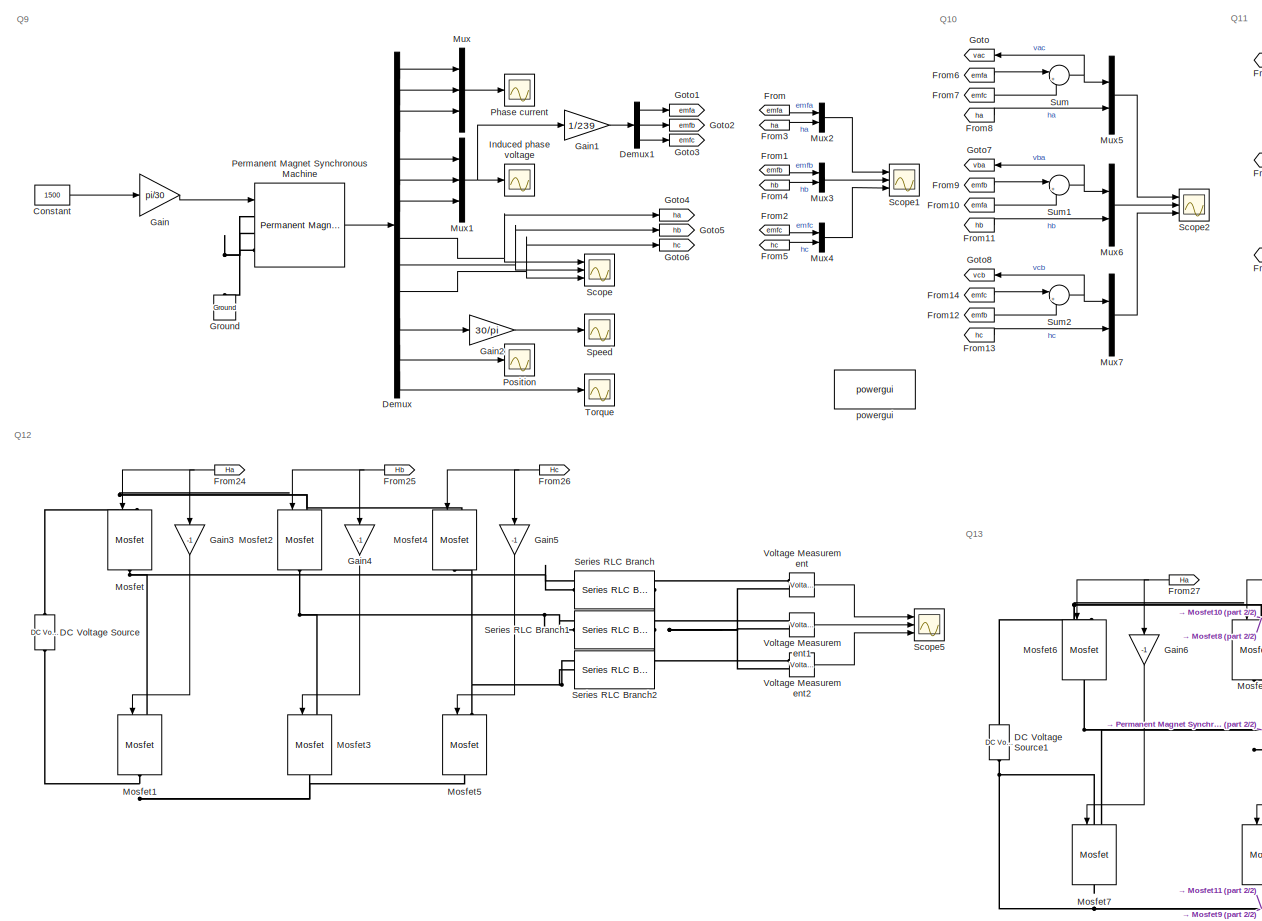
[diagram: root canvas - part 1/2, left side, full height]
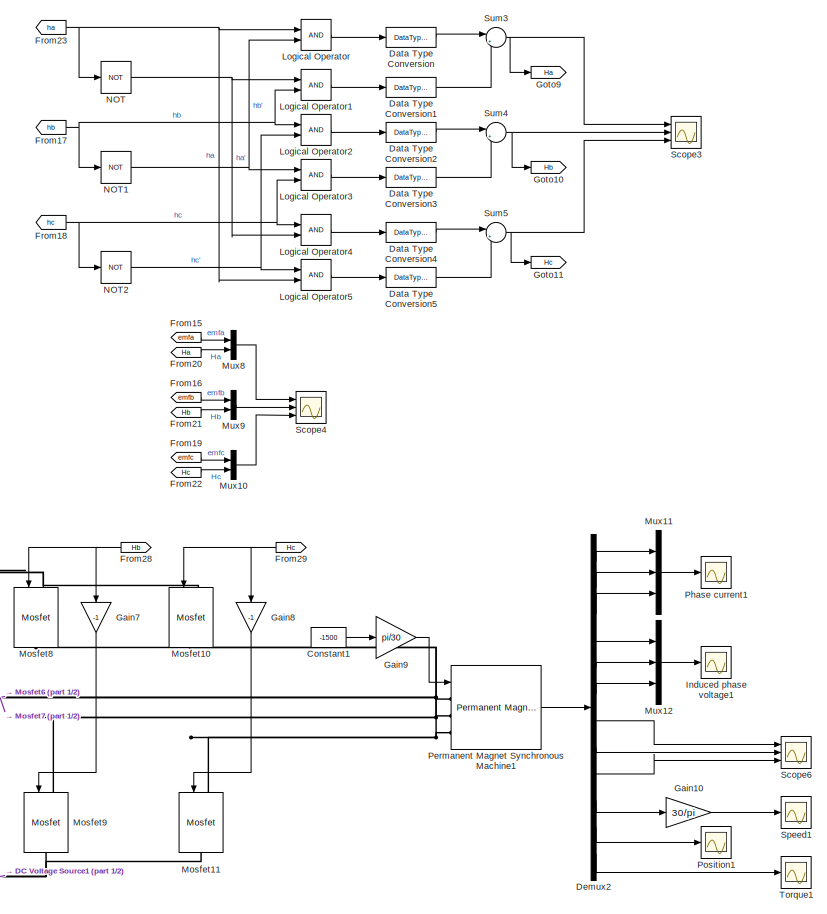
[diagram: root canvas - part 2/2, right side, full height]
MODEL slx_e524c21c30ba
KIND model
CONFIG AbsTol = auto
CONFIG EnableMultiTasking = off
CONFIG FixedStep = auto
CONFIG MaxStep = auto
CONFIG MinStep = auto
CONFIG RelTol = 1e-3
CONFIG SampleTimeConstraint = Unconstrained
CONFIG SolverName = VariableStepAuto
CONFIG StartTime = 0.0
CONFIG StopTime = 0.1
BLOCK [Constant] Constant
  Value = 1500
BLOCK [Constant] Constant1
  Value = -1500
BLOCK [Reference] DC Voltage Source  REF=powerlib/Electrical
Sources/DC Voltage Source
  NameLocation = right
  Ports = [0, 0, 0, 0, 0, 1, 1]
  SourceBlock = powerlib/Electrical\nSources/DC Voltage Source
  SourceProductBaseCode = PS
  SourceType = DC Voltage Source
BLOCK [Reference] DC Voltage Source1  REF=powerlib/Electrical
Sources/DC Voltage Source
  NameLocation = right
  Ports = [0, 0, 0, 0, 0, 1, 1]
  SourceBlock = powerlib/Electrical\nSources/DC Voltage Source
  SourceProductBaseCode = PS
  SourceType = DC Voltage Source
BLOCK [DataTypeConversion] Data Type Conversion
  RndMeth = Floor
  SaturateOnIntegerOverflow = off
BLOCK [DataTypeConversion] Data Type Conversion1
  RndMeth = Floor
  SaturateOnIntegerOverflow = off
BLOCK [DataTypeConversion] Data Type Conversion2
  RndMeth = Floor
  SaturateOnIntegerOverflow = off
BLOCK [DataTypeConversion] Data Type Conversion3
  RndMeth = Floor
  SaturateOnIntegerOverflow = off
BLOCK [DataTypeConversion] Data Type Conversion4
  RndMeth = Floor
  SaturateOnIntegerOverflow = off
BLOCK [DataTypeConversion] Data Type Conversion5
  RndMeth = Floor
  SaturateOnIntegerOverflow = off
BLOCK [Demux] Demux
  Outputs = 12
  Ports = [1, 12]
BLOCK [Demux] Demux1
  Outputs = 3
  Ports = [1, 3]
BLOCK [Demux] Demux2
  Outputs = 12
  Ports = [1, 12]
BLOCK [From] From
  GotoTag = emfa
  TagVisibility = global
BLOCK [From] From1
  GotoTag = emfb
  TagVisibility = global
BLOCK [From] From10
  GotoTag = emfa
  TagVisibility = global
BLOCK [From] From11
  GotoTag = hb
  TagVisibility = global
BLOCK [From] From12
  GotoTag = emfb
  TagVisibility = global
BLOCK [From] From13
  GotoTag = hc
  TagVisibility = global
BLOCK [From] From14
  GotoTag = emfc
  TagVisibility = global
BLOCK [From] From15
  GotoTag = emfa
  TagVisibility = global
BLOCK [From] From16
  GotoTag = emfb
  TagVisibility = global
BLOCK [From] From17
  GotoTag = hb
  TagVisibility = global
BLOCK [From] From18
  GotoTag = hc
  TagVisibility = global
BLOCK [From] From19
  GotoTag = emfc
  TagVisibility = global
BLOCK [From] From2
  GotoTag = emfc
  TagVisibility = global
BLOCK [From] From20
  GotoTag = Ha
  TagVisibility = global
BLOCK [From] From21
  GotoTag = Hb
  TagVisibility = global
BLOCK [From] From22
  GotoTag = Hc
  TagVisibility = global
BLOCK [From] From23
  GotoTag = ha
  TagVisibility = global
BLOCK [From] From24
  GotoTag = Ha
  NameLocation = top
  TagVisibility = global
BLOCK [From] From25
  GotoTag = Hb
  NameLocation = top
  TagVisibility = global
BLOCK [From] From26
  GotoTag = Hc
  NameLocation = top
  TagVisibility = global
BLOCK [From] From27
  GotoTag = Ha
  NameLocation = top
  TagVisibility = global
BLOCK [From] From28
  GotoTag = Hb
  NameLocation = top
  TagVisibility = global
BLOCK [From] From29
  GotoTag = Hc
  NameLocation = top
  TagVisibility = global
BLOCK [From] From3
  GotoTag = ha
  TagVisibility = global
BLOCK [From] From4
  GotoTag = hb
  TagVisibility = global
BLOCK [From] From5
  GotoTag = hc
  TagVisibility = global
BLOCK [From] From6
  GotoTag = emfa
  TagVisibility = global
BLOCK [From] From7
  GotoTag = emfc
  TagVisibility = global
BLOCK [From] From8
  GotoTag = ha
  TagVisibility = global
BLOCK [From] From9
  GotoTag = emfb
  TagVisibility = global
BLOCK [Gain] Gain
  Gain = pi/30
BLOCK [Gain] Gain1
  Gain = 1/239
BLOCK [Gain] Gain10
  Gain = 30/pi
BLOCK [Gain] Gain2
  Gain = 30/pi
BLOCK [Gain] Gain3
  Gain = -1
  NameLocation = left
BLOCK [Gain] Gain4
  Gain = -1
  NameLocation = left
BLOCK [Gain] Gain5
  Gain = -1
  NameLocation = left
BLOCK [Gain] Gain6
  Gain = -1
  NameLocation = left
BLOCK [Gain] Gain7
  Gain = -1
  NameLocation = left
BLOCK [Gain] Gain8
  Gain = -1
  NameLocation = left
BLOCK [Gain] Gain9
  Gain = pi/30
BLOCK [Goto] Goto
  GotoTag = vac
  NameLocation = top
  TagVisibility = global
BLOCK [Goto] Goto1
  GotoTag = emfa
  TagVisibility = global
BLOCK [Goto] Goto10
  GotoTag = Hb
  TagVisibility = global
BLOCK [Goto] Goto11
  GotoTag = Hc
  TagVisibility = global
BLOCK [Goto] Goto2
  GotoTag = emfb
  TagVisibility = global
BLOCK [Goto] Goto3
  GotoTag = emfc
  TagVisibility = global
BLOCK [Goto] Goto4
  GotoTag = ha
  TagVisibility = global
BLOCK [Goto] Goto5
  GotoTag = hb
  TagVisibility = global
BLOCK [Goto] Goto6
  GotoTag = hc
  TagVisibility = global
BLOCK [Goto] Goto7
  GotoTag = vba
  NameLocation = top
  TagVisibility = global
BLOCK [Goto] Goto8
  GotoTag = vcb
  NameLocation = top
  TagVisibility = global
BLOCK [Goto] Goto9
  GotoTag = Ha
  TagVisibility = global
BLOCK [Reference] Ground  REF=powerlib/Elements/Ground
  NameLocation = right
  Ports = [0, 0, 0, 0, 0, 1]
  SourceBlock = powerlib/Elements/Ground
  SourceProductBaseCode = PS
  SourceType = Ground
BLOCK [Scope] Induced phase voltage
  Floating = off
  NumInputPorts = 1
  Ports = [1]
  ScopeSpecificationString = Simulink.scopes.TimeScopeBlockCfg('CurrentConfiguration', extmgr.ConfigurationSet(extmgr.Configuration('Core','General UI',true),extmgr.Configuration('Core','Source UI',true),extmgr.Configuration('Sources','WiredSimulink',true,'DataLoggingVariableName','ScopeData1'),extmgr.Configuration('Visuals','Time Domain',true,'SerializedDisplays',{struct('MinYLimReal','-298.23924','MaxYLimReal','298.23924','...<+1753ch>
BLOCK [Scope] Induced phase voltage1
  Floating = off
  NumInputPorts = 1
  Ports = [1]
  ScopeSpecificationString = Simulink.scopes.TimeScopeBlockCfg('CurrentConfiguration', extmgr.ConfigurationSet(extmgr.Configuration('Core','General UI',true),extmgr.Configuration('Core','Source UI',true),extmgr.Configuration('Sources','WiredSimulink',true,'DataLoggingVariableName','ScopeData7'),extmgr.Configuration('Visuals','Time Domain',true,'SerializedDisplays',{struct('MinYLimReal','-298.23924','MaxYLimReal','298.23924','...<+1756ch>
BLOCK [Logic] Logical Operator
  AllPortsSameDT = off
  OutDataTypeStr = boolean
  Ports = [2, 1]
BLOCK [Logic] Logical Operator1
  AllPortsSameDT = off
  OutDataTypeStr = boolean
  Ports = [2, 1]
BLOCK [Logic] Logical Operator2
  AllPortsSameDT = off
  OutDataTypeStr = boolean
  Ports = [2, 1]
BLOCK [Logic] Logical Operator3
  AllPortsSameDT = off
  OutDataTypeStr = boolean
  Ports = [2, 1]
BLOCK [Logic] Logical Operator4
  AllPortsSameDT = off
  OutDataTypeStr = boolean
  Ports = [2, 1]
BLOCK [Logic] Logical Operator5
  AllPortsSameDT = off
  OutDataTypeStr = boolean
  Ports = [2, 1]
BLOCK [Reference] Mosfet  REF=powerlib/Power
Electronics/Mosfet
  NameLocation = left
  Ports = [1, 0, 0, 0, 0, 1, 1]
  SourceBlock = powerlib/Power\nElectronics/Mosfet
  SourceProductBaseCode = PS
  SourceType = Mosfet
BLOCK [Reference] Mosfet1  REF=powerlib/Power
Electronics/Mosfet
  NameLocation = left
  Ports = [1, 0, 0, 0, 0, 1, 1]
  SourceBlock = powerlib/Power\nElectronics/Mosfet
  SourceProductBaseCode = PS
  SourceType = Mosfet
BLOCK [Reference] Mosfet10  REF=powerlib/Power
Electronics/Mosfet
  NameLocation = left
  Ports = [1, 0, 0, 0, 0, 1, 1]
  SourceBlock = powerlib/Power\nElectronics/Mosfet
  SourceProductBaseCode = PS
  SourceType = Mosfet
BLOCK [Reference] Mosfet11  REF=powerlib/Power
Electronics/Mosfet
  NameLocation = left
  Ports = [1, 0, 0, 0, 0, 1, 1]
  SourceBlock = powerlib/Power\nElectronics/Mosfet
  SourceProductBaseCode = PS
  SourceType = Mosfet
BLOCK [Reference] Mosfet2  REF=powerlib/Power
Electronics/Mosfet
  NameLocation = left
  Ports = [1, 0, 0, 0, 0, 1, 1]
  SourceBlock = powerlib/Power\nElectronics/Mosfet
  SourceProductBaseCode = PS
  SourceType = Mosfet
BLOCK [Reference] Mosfet3  REF=powerlib/Power
Electronics/Mosfet
  NameLocation = left
  Ports = [1, 0, 0, 0, 0, 1, 1]
  SourceBlock = powerlib/Power\nElectronics/Mosfet
  SourceProductBaseCode = PS
  SourceType = Mosfet
BLOCK [Reference] Mosfet4  REF=powerlib/Power
Electronics/Mosfet
  NameLocation = left
  Ports = [1, 0, 0, 0, 0, 1, 1]
  SourceBlock = powerlib/Power\nElectronics/Mosfet
  SourceProductBaseCode = PS
  SourceType = Mosfet
BLOCK [Reference] Mosfet5  REF=powerlib/Power
Electronics/Mosfet
  NameLocation = left
  Ports = [1, 0, 0, 0, 0, 1, 1]
  SourceBlock = powerlib/Power\nElectronics/Mosfet
  SourceProductBaseCode = PS
  SourceType = Mosfet
BLOCK [Reference] Mosfet6  REF=powerlib/Power
Electronics/Mosfet
  NameLocation = left
  Ports = [1, 0, 0, 0, 0, 1, 1]
  SourceBlock = powerlib/Power\nElectronics/Mosfet
  SourceProductBaseCode = PS
  SourceType = Mosfet
BLOCK [Reference] Mosfet7  REF=powerlib/Power
Electronics/Mosfet
  NameLocation = left
  Ports = [1, 0, 0, 0, 0, 1, 1]
  SourceBlock = powerlib/Power\nElectronics/Mosfet
  SourceProductBaseCode = PS
  SourceType = Mosfet
BLOCK [Reference] Mosfet8  REF=powerlib/Power
Electronics/Mosfet
  NameLocation = left
  Ports = [1, 0, 0, 0, 0, 1, 1]
  SourceBlock = powerlib/Power\nElectronics/Mosfet
  SourceProductBaseCode = PS
  SourceType = Mosfet
BLOCK [Reference] Mosfet9  REF=powerlib/Power
Electronics/Mosfet
  NameLocation = left
  Ports = [1, 0, 0, 0, 0, 1, 1]
  SourceBlock = powerlib/Power\nElectronics/Mosfet
  SourceProductBaseCode = PS
  SourceType = Mosfet
BLOCK [Mux] Mux
  DisplayOption = bar
  Inputs = 3
  Ports = [3, 1]
BLOCK [Mux] Mux1
  DisplayOption = bar
  Inputs = 3
  Ports = [3, 1]
BLOCK [Mux] Mux10
  DisplayOption = bar
  Inputs = 2
  Ports = [2, 1]
BLOCK [Mux] Mux11
  DisplayOption = bar
  Inputs = 3
  Ports = [3, 1]
BLOCK [Mux] Mux12
  DisplayOption = bar
  Inputs = 3
  Ports = [3, 1]
BLOCK [Mux] Mux2
  DisplayOption = bar
  Inputs = 2
  Ports = [2, 1]
BLOCK [Mux] Mux3
  DisplayOption = bar
  Inputs = 2
  Ports = [2, 1]
BLOCK [Mux] Mux4
  DisplayOption = bar
  Inputs = 2
  Ports = [2, 1]
BLOCK [Mux] Mux5
  DisplayOption = bar
  Inputs = 2
  Ports = [2, 1]
BLOCK [Mux] Mux6
  DisplayOption = bar
  Inputs = 2
  Ports = [2, 1]
BLOCK [Mux] Mux7
  DisplayOption = bar
  Inputs = 2
  Ports = [2, 1]
BLOCK [Mux] Mux8
  DisplayOption = bar
  Inputs = 2
  Ports = [2, 1]
BLOCK [Mux] Mux9
  DisplayOption = bar
  Inputs = 2
  Ports = [2, 1]
BLOCK [Logic] NOT
  AllPortsSameDT = off
  IconShape = distinctive
  Operator = NOT
  OutDataTypeStr = boolean
  Ports = [1, 1]
BLOCK [Logic] NOT1
  AllPortsSameDT = off
  IconShape = distinctive
  Operator = NOT
  OutDataTypeStr = boolean
  Ports = [1, 1]
BLOCK [Logic] NOT2
  AllPortsSameDT = off
  IconShape = distinctive
  Operator = NOT
  OutDataTypeStr = boolean
  Ports = [1, 1]
BLOCK [Reference] Permanent Magnet Synchronous Machine  REF=powerlib/Machines/Permanent Magnet
Synchronous Machine
  Ports = [1, 1, 0, 0, 0, 3]
  SourceBlock = powerlib/Machines/Permanent Magnet\nSynchronous Machine
  SourceProductBaseCode = PS
  SourceType = Permanent Magnet Synchronous Machine
BLOCK [Reference] Permanent Magnet Synchronous Machine1  REF=powerlib/Machines/Permanent Magnet
Synchronous Machine
  Ports = [1, 1, 0, 0, 0, 3]
  SourceBlock = powerlib/Machines/Permanent Magnet\nSynchronous Machine
  SourceProductBaseCode = PS
  SourceType = Permanent Magnet Synchronous Machine
BLOCK [Scope] Phase current
  Floating = off
  NumInputPorts = 1
  Ports = [1]
  ScopeSpecificationString = Simulink.scopes.TimeScopeBlockCfg('CurrentConfiguration', extmgr.ConfigurationSet(extmgr.Configuration('Core','General UI',true),extmgr.Configuration('Core','Source UI',true),extmgr.Configuration('Sources','WiredSimulink',true),extmgr.Configuration('Visuals','Time Domain',true,'SerializedDisplays',{struct('MinYLimReal','-42.22072','MaxYLimReal','42.1209','YLabelReal','','MinYLimMag','0.00000','Max...<+1381ch>
BLOCK [Scope] Phase current1
  Floating = off
  NumInputPorts = 1
  Ports = [1]
  ScopeSpecificationString = Simulink.scopes.TimeScopeBlockCfg('CurrentConfiguration', extmgr.ConfigurationSet(extmgr.Configuration('Core','General UI',true),extmgr.Configuration('Core','Source UI',true),extmgr.Configuration('Sources','WiredSimulink',true,'DataLoggingVariableName','ScopeData8'),extmgr.Configuration('Visuals','Time Domain',true,'SerializedDisplays',{struct('MinYLimReal','-42.22029','MaxYLimReal','42.12021','YL...<+1422ch>
BLOCK [Scope] Position
  Floating = off
  NumInputPorts = 1
  Ports = [1]
  ScopeSpecificationString = Simulink.scopes.TimeScopeBlockCfg('CurrentConfiguration', extmgr.ConfigurationSet(extmgr.Configuration('Core','General UI',true),extmgr.Configuration('Core','Source UI',true),extmgr.Configuration('Sources','WiredSimulink',true,'DataLoggingVariableName','ScopeData4'),extmgr.Configuration('Visuals','Time Domain',true,'SerializedDisplays',{struct('MinYLimReal','-1.9635','MaxYLimReal','17.67146','YLab...<+1399ch>
BLOCK [Scope] Position1
  Floating = off
  NumInputPorts = 1
  Ports = [1]
  ScopeSpecificationString = Simulink.scopes.TimeScopeBlockCfg('CurrentConfiguration', extmgr.ConfigurationSet(extmgr.Configuration('Core','General UI',true),extmgr.Configuration('Core','Source UI',true),extmgr.Configuration('Sources','WiredSimulink',true,'DataLoggingVariableName','ScopeData3'),extmgr.Configuration('Visuals','Time Domain',true,'SerializedDisplays',{struct('MinYLimReal','-1.96281','MaxYLimReal','17.6653','YLab...<+1398ch>
BLOCK [Scope] Scope
  Floating = off
  NumInputPorts = 3
  Ports = [3]
  ScopeSpecificationString = Simulink.scopes.TimeScopeBlockCfg('CurrentConfiguration', extmgr.ConfigurationSet(extmgr.Configuration('Core','General UI',true),extmgr.Configuration('Core','Source UI',true),extmgr.Configuration('Sources','WiredSimulink',true,'DataLoggingVariableName','ScopeData2'),extmgr.Configuration('Visuals','Time Domain',true,'SerializedDisplays',{struct('MinYLimReal','-0.125','MaxYLimReal','1.125','YLabelRe...<+2657ch>
BLOCK [Scope] Scope1
  Floating = off
  NumInputPorts = 3
  Ports = [3]
  ScopeSpecificationString = Simulink.scopes.TimeScopeBlockCfg('CurrentConfiguration', extmgr.ConfigurationSet(extmgr.Configuration('Core','General UI',true),extmgr.Configuration('Core','Source UI',true),extmgr.Configuration('Sources','WiredSimulink',true,'DataLoggingVariableName','ScopeData6'),extmgr.Configuration('Visuals','Time Domain',true,'SerializedDisplays',{struct('MinYLimReal','-1.24808','MaxYLimReal','1.24979','YLab...<+2678ch>
BLOCK [Scope] Scope2
  Floating = off
  NumInputPorts = 3
  Ports = [3]
  ScopeSpecificationString = Simulink.scopes.TimeScopeBlockCfg('CurrentConfiguration', extmgr.ConfigurationSet(extmgr.Configuration('Core','General UI',true),extmgr.Configuration('Core','Source UI',true),extmgr.Configuration('Sources','WiredSimulink',true,'DataLoggingVariableName','ScopeData1'),extmgr.Configuration('Visuals','Time Domain',true,'SerializedDisplays',{struct('MinYLimReal','-2.49573','MaxYLimReal','2.49573','YLab...<+2675ch>
BLOCK [Scope] Scope3
  Floating = off
  NumInputPorts = 3
  Ports = [3]
  ScopeSpecificationString = Simulink.scopes.TimeScopeBlockCfg('CurrentConfiguration', extmgr.ConfigurationSet(extmgr.Configuration('Core','General UI',true),extmgr.Configuration('Core','Source UI',true),extmgr.Configuration('Sources','WiredSimulink',true,'DataLoggingVariableName','ScopeData1'),extmgr.Configuration('Visuals','Time Domain',true,'SerializedDisplays',{struct('MinYLimReal','-1.25','MaxYLimReal','1.25','YLabelReal...<+2648ch>
BLOCK [Scope] Scope4
  Floating = off
  NumInputPorts = 3
  Ports = [3]
  ScopeSpecificationString = Simulink.scopes.TimeScopeBlockCfg('CurrentConfiguration', extmgr.ConfigurationSet(extmgr.Configuration('Core','General UI',true),extmgr.Configuration('Core','Source UI',true),extmgr.Configuration('Sources','WiredSimulink',true,'DataLoggingVariableName','ScopeData2'),extmgr.Configuration('Visuals','Time Domain',true,'SerializedDisplays',{struct('MinYLimReal','-1.25','MaxYLimReal','1.25','YLabelReal...<+2654ch>
BLOCK [Scope] Scope5
  Floating = off
  NumInputPorts = 3
  Ports = [3]
  ScopeSpecificationString = Simulink.scopes.TimeScopeBlockCfg('CurrentConfiguration', extmgr.ConfigurationSet(extmgr.Configuration('Core','General UI',true),extmgr.Configuration('Core','Source UI',true),extmgr.Configuration('Sources','WiredSimulink',true,'DataLoggingVariableName','ScopeData1'),extmgr.Configuration('Visuals','Time Domain',true,'SerializedDisplays',{struct('MinYLimReal','-0.03123','MaxYLimReal','0.03123','YLab...<+2713ch>
BLOCK [Scope] Scope6
  Floating = off
  NumInputPorts = 3
  Ports = [3]
  ScopeSpecificationString = Simulink.scopes.TimeScopeBlockCfg('CurrentConfiguration', extmgr.ConfigurationSet(extmgr.Configuration('Core','General UI',true),extmgr.Configuration('Core','Source UI',true),extmgr.Configuration('Sources','WiredSimulink',true,'DataLoggingVariableName','ScopeData4'),extmgr.Configuration('Visuals','Time Domain',true,'SerializedDisplays',{struct('MinYLimReal','-0.125','MaxYLimReal','1.125','YLabelRe...<+2660ch>
BLOCK [Reference] Series RLC Branch  REF=powerlib/Elements/Series RLC Branch
  Ports = [0, 0, 0, 0, 0, 1, 1]
  SourceBlock = powerlib/Elements/Series RLC Branch
  SourceProductBaseCode = PS
  SourceType = Series RLC Branch
BLOCK [Reference] Series RLC Branch1  REF=powerlib/Elements/Series RLC Branch
  Ports = [0, 0, 0, 0, 0, 1, 1]
  SourceBlock = powerlib/Elements/Series RLC Branch
  SourceProductBaseCode = PS
  SourceType = Series RLC Branch
BLOCK [Reference] Series RLC Branch2  REF=powerlib/Elements/Series RLC Branch
  Ports = [0, 0, 0, 0, 0, 1, 1]
  SourceBlock = powerlib/Elements/Series RLC Branch
  SourceProductBaseCode = PS
  SourceType = Series RLC Branch
BLOCK [Scope] Speed
  Floating = off
  NumInputPorts = 1
  Ports = [1]
  ScopeSpecificationString = Simulink.scopes.TimeScopeBlockCfg('CurrentConfiguration', extmgr.ConfigurationSet(extmgr.Configuration('Core','General UI',true),extmgr.Configuration('Core','Source UI',true),extmgr.Configuration('Sources','WiredSimulink',true,'DataLoggingVariableName','ScopeData3'),extmgr.Configuration('Visuals','Time Domain',true,'SerializedDisplays',{struct('MinYLimReal','500.00000','MaxYLimReal','2500.00000','...<+1447ch>
BLOCK [Scope] Speed1
  Floating = off
  NumInputPorts = 1
  Ports = [1]
  ScopeSpecificationString = Simulink.scopes.TimeScopeBlockCfg('CurrentConfiguration', extmgr.ConfigurationSet(extmgr.Configuration('Core','General UI',true),extmgr.Configuration('Core','Source UI',true),extmgr.Configuration('Sources','WiredSimulink',true,'DataLoggingVariableName','ScopeData5'),extmgr.Configuration('Visuals','Time Domain',true,'SerializedDisplays',{struct('MinYLimReal','500.00000','MaxYLimReal','2500.00000','...<+1447ch>
BLOCK [Sum] Sum
  Inputs = |+-
  Ports = [2, 1]
BLOCK [Sum] Sum1
  Inputs = |+-
  Ports = [2, 1]
BLOCK [Sum] Sum2
  Inputs = |+-
  Ports = [2, 1]
BLOCK [Sum] Sum3
  Inputs = |+-
  Ports = [2, 1]
BLOCK [Sum] Sum4
  Inputs = |+-
  Ports = [2, 1]
BLOCK [Sum] Sum5
  Inputs = |+-
  Ports = [2, 1]
BLOCK [Scope] Torque
  Floating = off
  NumInputPorts = 1
  Ports = [1]
  ScopeSpecificationString = Simulink.scopes.TimeScopeBlockCfg('CurrentConfiguration', extmgr.ConfigurationSet(extmgr.Configuration('Core','General UI',true),extmgr.Configuration('Core','Source UI',true),extmgr.Configuration('Sources','WiredSimulink',true,'DataLoggingVariableName','ScopeData5'),extmgr.Configuration('Visuals','Time Domain',true,'SerializedDisplays',{struct('MinYLimReal','-105.57315','MaxYLimReal','11.73035','Y...<+1409ch>
BLOCK [Scope] Torque1
  Floating = off
  NumInputPorts = 1
  Ports = [1]
  ScopeSpecificationString = Simulink.scopes.TimeScopeBlockCfg('CurrentConfiguration', extmgr.ConfigurationSet(extmgr.Configuration('Core','General UI',true),extmgr.Configuration('Core','Source UI',true),extmgr.Configuration('Sources','WiredSimulink',true,'DataLoggingVariableName','ScopeData6'),extmgr.Configuration('Visuals','Time Domain',true,'SerializedDisplays',{struct('MinYLimReal','-105.57221','MaxYLimReal','11.73025','Y...<+1410ch>
BLOCK [Reference] Voltage Measurement  REF=powerlib/Measurements/Voltage Measurement
  Ports = [0, 1, 0, 0, 0, 2]
  SourceBlock = powerlib/Measurements/Voltage Measurement
  SourceProductBaseCode = PS
  SourceType = Voltage Measurement
  UserDataPersistent = on
BLOCK [Reference] Voltage Measurement1  REF=powerlib/Measurements/Voltage Measurement
  Ports = [0, 1, 0, 0, 0, 2]
  SourceBlock = powerlib/Measurements/Voltage Measurement
  SourceProductBaseCode = PS
  SourceType = Voltage Measurement
  UserDataPersistent = on
BLOCK [Reference] Voltage Measurement2  REF=powerlib/Measurements/Voltage Measurement
  Ports = [0, 1, 0, 0, 0, 2]
  SourceBlock = powerlib/Measurements/Voltage Measurement
  SourceProductBaseCode = PS
  SourceType = Voltage Measurement
  UserDataPersistent = on
BLOCK [Reference] powergui  REF=powerlib/powergui
  Ports = []
  Priority = 1
  SourceBlock = powerlib/powergui
  SourceProductBaseCode = PS
  SourceType = PSB option menu block
ANNOTATION (root): Q10
ANNOTATION (root): Q11
ANNOTATION (root): Q12
ANNOTATION (root): Q13
ANNOTATION (root): Q9
LINE Constant1:1 -> Gain9:1
LINE Constant:1 -> Gain:1
LINE Data Type Conversion1:1 -> Sum3:2
LINE Data Type Conversion2:1 -> Sum4:1
LINE Data Type Conversion3:1 -> Sum4:2
LINE Data Type Conversion4:1 -> Sum5:1
LINE Data Type Conversion5:1 -> Sum5:2
LINE Data Type Conversion:1 -> Sum3:1
LINE Demux1:1 -> Goto1:1
LINE Demux1:2 -> Goto2:1
LINE Demux1:3 -> Goto3:1
LINE Demux2:1 -> Mux11:1
LINE Demux2:10 -> Gain10:1
LINE Demux2:11 -> Position1:1
LINE Demux2:12 -> Torque1:1
LINE Demux2:2 -> Mux11:2
LINE Demux2:3 -> Mux11:3
LINE Demux2:4 -> Mux12:1
LINE Demux2:5 -> Mux12:2
LINE Demux2:6 -> Mux12:3
LINE Demux2:7 -> Scope6:1
LINE Demux2:8 -> Scope6:2
LINE Demux2:9 -> Scope6:3
LINE Demux:1 -> Mux:1
LINE Demux:10 -> Gain2:1
LINE Demux:11 -> Position:1
LINE Demux:12 -> Torque:1
LINE Demux:2 -> Mux:2
LINE Demux:3 -> Mux:3
LINE Demux:4 -> Mux1:1
LINE Demux:5 -> Mux1:2
LINE Demux:6 -> Mux1:3
NET Demux:7 -> Goto4:1, Scope:1
NET Demux:8 -> Goto5:1, Scope:2
NET Demux:9 -> Goto6:1, Scope:3
LINE From10:1 -> Sum1:2
LINE From11:1 -> Mux6:2
LINE From12:1 -> Sum2:2
LINE From13:1 -> Mux7:2
LINE From14:1 -> Sum2:1
LINE From15:1 -> Mux8:1
LINE From16:1 -> Mux9:1
NET From17:1 -> Logical Operator1:2, Logical Operator2:1, NOT1:1
NET From18:1 -> Logical Operator3:2, Logical Operator4:1, NOT2:1
LINE From19:1 -> Mux10:1
LINE From1:1 -> Mux3:1
LINE From20:1 -> Mux8:2
LINE From21:1 -> Mux9:2
LINE From22:1 -> Mux10:2
NET From23:1 -> Logical Operator5:2, Logical Operator:1, NOT:1
NET From24:1 -> Gain3:1, Mosfet:1
NET From25:1 -> Gain4:1, Mosfet2:1
NET From26:1 -> Gain5:1, Mosfet4:1
NET From27:1 -> Gain6:1, Mosfet6:1
NET From28:1 -> Gain7:1, Mosfet8:1
NET From29:1 -> Gain8:1, Mosfet10:1
LINE From2:1 -> Mux4:1
LINE From3:1 -> Mux2:2
LINE From4:1 -> Mux3:2
LINE From5:1 -> Mux4:2
LINE From6:1 -> Sum:1
LINE From7:1 -> Sum:2
LINE From8:1 -> Mux5:2
LINE From9:1 -> Sum1:1
LINE From:1 -> Mux2:1
LINE Gain10:1 -> Speed1:1
LINE Gain1:1 -> Demux1:1
LINE Gain2:1 -> Speed:1
LINE Gain3:1 -> Mosfet1:1
LINE Gain4:1 -> Mosfet3:1
LINE Gain5:1 -> Mosfet5:1
LINE Gain6:1 -> Mosfet7:1
LINE Gain7:1 -> Mosfet9:1
LINE Gain8:1 -> Mosfet11:1
LINE Gain9:1 -> Permanent Magnet Synchronous Machine1:1
LINE Gain:1 -> Permanent Magnet Synchronous Machine:1
LINE Logical Operator1:1 -> Data Type Conversion1:1
LINE Logical Operator2:1 -> Data Type Conversion2:1
LINE Logical Operator3:1 -> Data Type Conversion3:1
LINE Logical Operator4:1 -> Data Type Conversion4:1
LINE Logical Operator5:1 -> Data Type Conversion5:1
LINE Logical Operator:1 -> Data Type Conversion:1
LINE Mux10:1 -> Scope4:3
LINE Mux11:1 -> Phase current1:1
LINE Mux12:1 -> Induced phase voltage1:1
NET Mux1:1 -> Gain1:1, Induced phase voltage:1
LINE Mux2:1 -> Scope1:1
LINE Mux3:1 -> Scope1:2
LINE Mux4:1 -> Scope1:3
LINE Mux5:1 -> Scope2:1
LINE Mux6:1 -> Scope2:2
LINE Mux7:1 -> Scope2:3
LINE Mux8:1 -> Scope4:1
LINE Mux9:1 -> Scope4:2
LINE Mux:1 -> Phase current:1
NET NOT1:1 -> Logical Operator3:1, Logical Operator:2
NET NOT2:1 -> Logical Operator2:2, Logical Operator5:1
NET NOT:1 -> Logical Operator1:1, Logical Operator4:2
LINE Permanent Magnet Synchronous Machine1:1 -> Demux2:1
LINE Permanent Magnet Synchronous Machine:1 -> Demux:1
NET Sum1:1 -> Goto7:1, Mux6:1
NET Sum2:1 -> Goto8:1, Mux7:1
NET Sum3:1 -> Goto9:1, Scope3:1
NET Sum4:1 -> Goto10:1, Scope3:2
NET Sum5:1 -> Goto11:1, Scope3:3
NET Sum:1 -> Goto:1, Mux5:1
LINE Voltage Measurement1:1 -> Scope5:2
LINE Voltage Measurement2:1 -> Scope5:3
LINE Voltage Measurement:1 -> Scope5:1
PNET net1: DC Voltage Source1:LConn1 -- Mosfet11:RConn1 -- Mosfet7:RConn1 -- Mosfet9:RConn1
PNET net2: DC Voltage Source1:RConn1 -- Mosfet10:LConn1 -- Mosfet6:LConn1 -- Mosfet8:LConn1
PNET net3: DC Voltage Source:LConn1 -- Mosfet1:RConn1 -- Mosfet3:RConn1 -- Mosfet5:RConn1
PNET net4: DC Voltage Source:RConn1 -- Mosfet2:LConn1 -- Mosfet4:LConn1 -- Mosfet:LConn1
PNET net5: Ground:LConn1 -- Permanent Magnet Synchronous Machine:LConn1 -- Permanent Magnet Synchronous Machine:LConn2 -- Permanent Magnet Synchronous Machine:LConn3
PNET net6: Mosfet10:RConn1 -- Mosfet11:LConn1 -- Permanent Magnet Synchronous Machine1:LConn3
PNET net7: Mosfet1:LConn1 -- Mosfet:RConn1 -- Series RLC Branch:LConn1 -- Voltage Measurement:LConn1
PNET net8: Mosfet2:RConn1 -- Mosfet3:LConn1 -- Series RLC Branch1:LConn1 -- Voltage Measurement1:LConn1
PNET net9: Mosfet4:RConn1 -- Mosfet5:LConn1 -- Series RLC Branch2:LConn1 -- Voltage Measurement2:LConn1
PNET net10: Mosfet6:RConn1 -- Mosfet7:LConn1 -- Permanent Magnet Synchronous Machine1:LConn1
PNET net11: Mosfet8:RConn1 -- Mosfet9:LConn1 -- Permanent Magnet Synchronous Machine1:LConn2
PNET net12: Series RLC Branch1:RConn1 -- Series RLC Branch2:RConn1 -- Series RLC Branch:RConn1 -- Voltage Measurement1:LConn2 -- Voltage Measurement2:LConn2 -- Voltage Measurement:LConn2
note: NET lines group one-source signal fan-out (src -> all destinations, sorted); 1:1 wires keep LINE; PNET lines group multi-terminal physical nets as a canonical sorted terminal list (undirected conserving connections); 2-terminal nets keep the pairwise PLINE form
